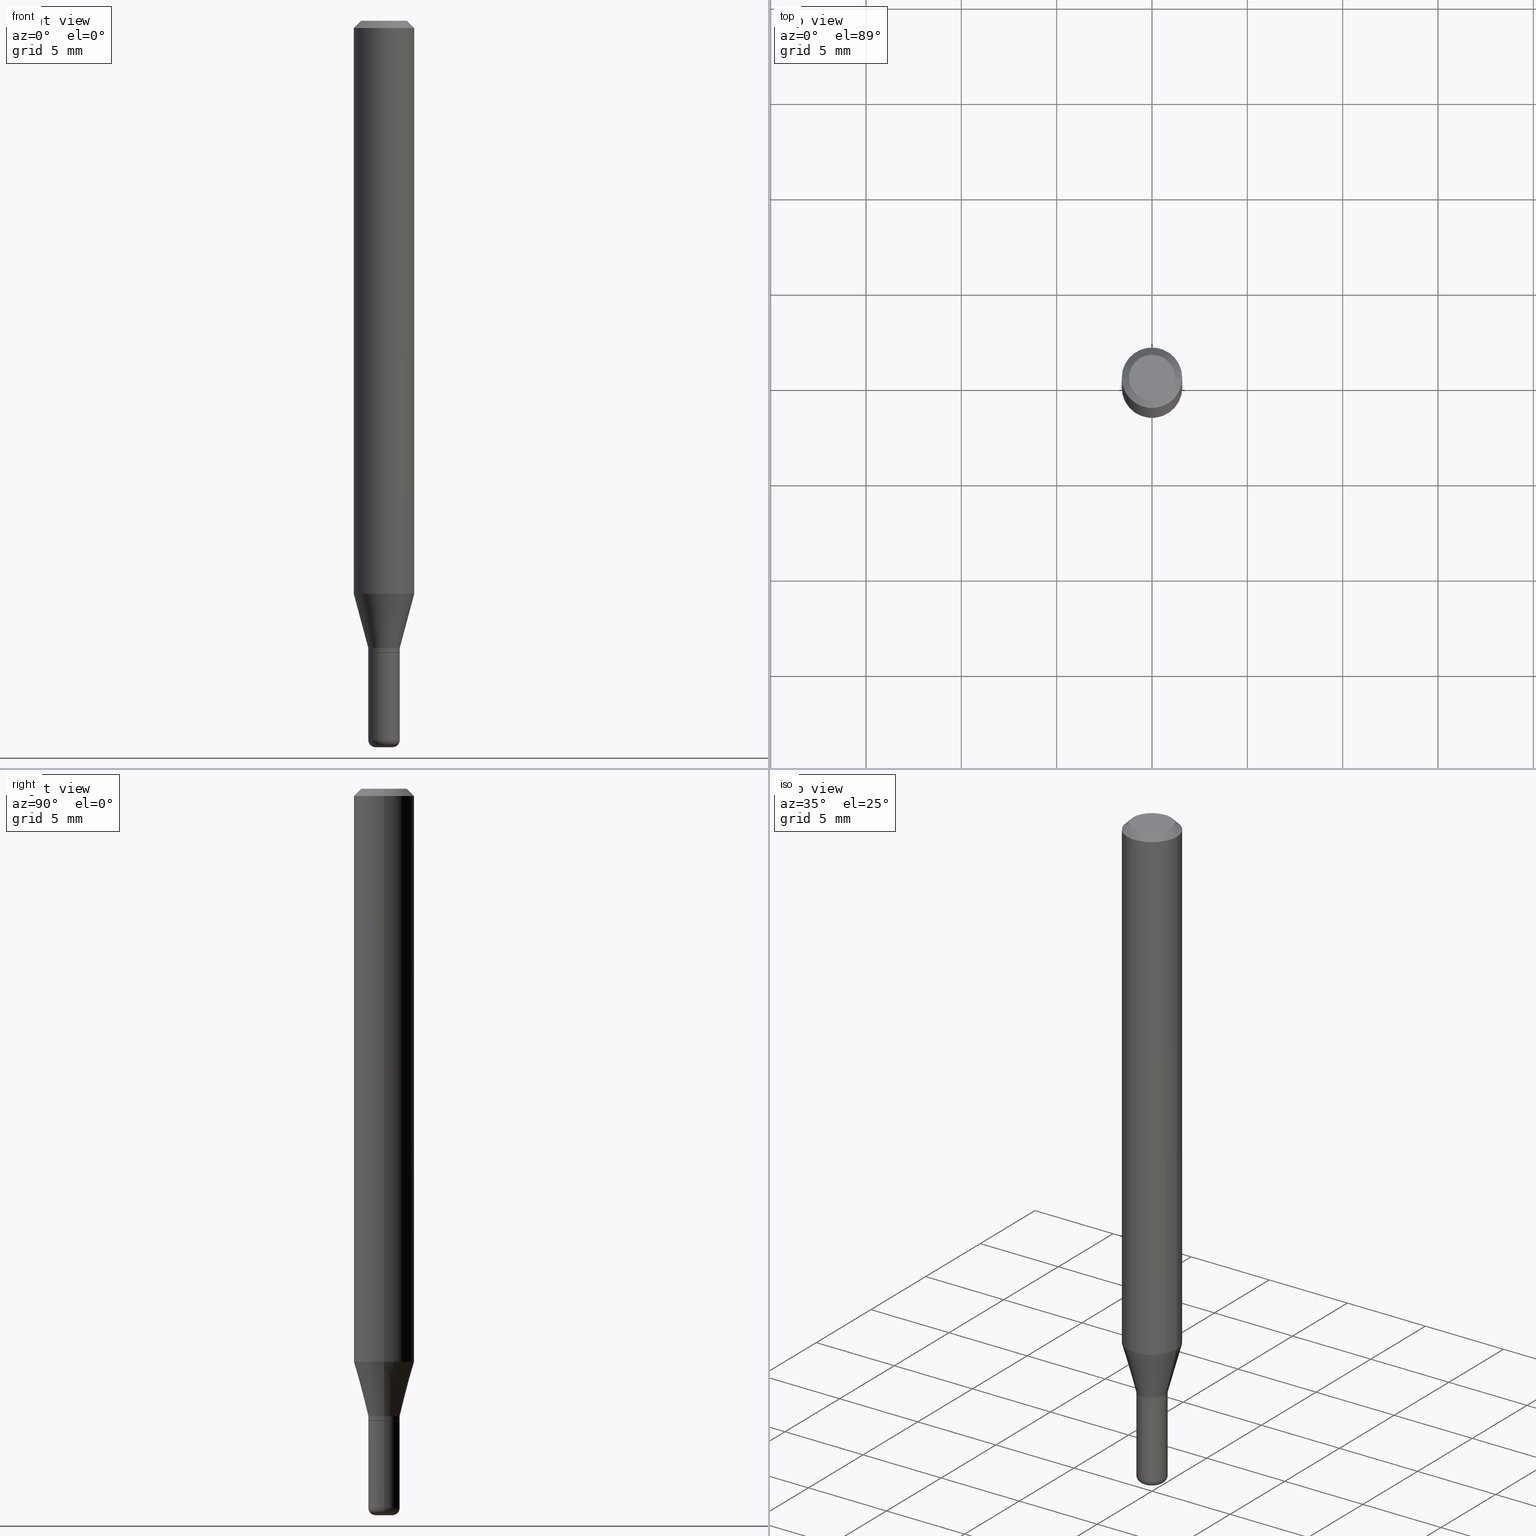
[diagram: canonical four-view strip — front | top / right | iso, engineering-drawing reading convention]
A machine part, canonical four-view strip (front | top / right | iso — engineering-drawing reading convention). The complete STEP part file that produces these views, byte-faithful:
ISO-10303-21;
HEADER;
FILE_DESCRIPTION (( 'STEP AP203' ),
    '1' );
FILE_NAME ('09029.STEP',
    '2024-02-29T21:25:33',
    ( '' ),
    ( '' ),
    'SwSTEP 2.0',
    'SolidWorks 2023',
    '' );
FILE_SCHEMA (( 'CONFIG_CONTROL_DESIGN' ));
ENDSEC;

DATA;
#1 = FACE_OUTER_BOUND ( 'NONE', #249, .T. ) ;
#2 = EDGE_LOOP ( 'NONE', ( #177, #427, #181, #397 ) ) ;
#3 = VERTEX_POINT ( 'NONE', #19 ) ;
#4 = CARTESIAN_POINT ( 'NONE',  ( 2.893083689019520084E-29, -4.130556761294637105E-15, -1.183038475772933751 ) ) ;
#5 = CIRCLE ( 'NONE', #326, 0.06250000000000000000 ) ;
#6 = VERTEX_POINT ( 'NONE', #340 ) ;
#7 = DIRECTION ( 'NONE',  ( 1.000000000000000000, -6.982962677686265922E-15, 4.876176775795935793E-29 ) ) ;
#8 = CC_DESIGN_PERSON_AND_ORGANIZATION_ASSIGNMENT ( #373, #100, ( #132 ) ) ;
#9 = DIRECTION ( 'NONE',  ( 1.000000000000000000, -6.982962677686261189E-15, 0.000000000000000000 ) ) ;
#10 = EDGE_LOOP ( 'NONE', ( #393, #253, #454, #400 ) ) ;
#11 = CONICAL_SURFACE ( 'NONE', #425, 0.03199999999999999373, 0.7853981633975507526 ) ;
#12 = VERTEX_POINT ( 'NONE', #22 ) ;
#13 = COORDINATED_UNIVERSAL_TIME_OFFSET ( 5, 0, .BEHIND. ) ;
#14 = EDGE_LOOP ( 'NONE', ( #293, #376, #483, #39 ) ) ;
#15 = DIRECTION ( 'NONE',  ( 1.000000000000000000, -6.982962677686266711E-15, 0.000000000000000000 ) ) ;
#16 = EDGE_CURVE ( 'NONE', #281, #18, #67, .T. ) ;
#17 = DIRECTION ( 'NONE',  ( -6.982962677686266711E-15, -1.000000000000000000, 3.491481338843145583E-15 ) ) ;
#18 = VERTEX_POINT ( 'NONE', #466 ) ;
#19 = CARTESIAN_POINT ( 'NONE',  ( -0.04750000000000000749, 3.578768372314221353E-16, 2.731847993664239060E-16 ) ) ;
#20 = CALENDAR_DATE ( 2024, 29, 2 ) ;
#21 = DIRECTION ( 'NONE',  ( 1.000000000000000000, -6.982962677686265922E-15, 4.876176775795935232E-29 ) ) ;
#22 = CARTESIAN_POINT ( 'NONE',  ( -0.01750000000000000167, -5.033400214283369630E-15, -1.500000000000000222 ) ) ;
#23 = AXIS2_PLACEMENT_3D ( 'NONE', #4, #503, #116 ) ;
#24 = APPROVAL_DATE_TIME ( #229, #65 ) ;
#25 = CC_DESIGN_APPROVAL ( #428, ( #285 ) ) ;
#26 = CARTESIAN_POINT ( 'NONE',  ( 3.668203209277704895E-29, -5.237222008264718177E-15, -1.500000000000000222 ) ) ;
#27 = ADVANCED_FACE ( 'NONE', ( #189 ), #254, .F. ) ;
#28 = DIRECTION ( 'NONE',  ( -2.445468806185136877E-29, 3.491481338843145188E-15, 1.000000000000000000 ) ) ;
#29 = AXIS2_PLACEMENT_3D ( 'NONE', #343, #17, #498 ) ;
#30 = DIRECTION ( 'NONE',  ( 1.000000000000000000, -6.982962677686262766E-15, 0.000000000000000000 ) ) ;
#31 = EDGE_LOOP ( 'NONE', ( #516, #242 ) ) ;
#32 = CIRCLE ( 'NONE', #311, 0.03250000000000000111 ) ;
#33 = DIRECTION ( 'NONE',  ( 1.000000000000000000, -6.982962677686267499E-15, 4.876176775795936353E-29 ) ) ;
#34 = DIRECTION ( 'NONE',  ( -2.445468806185136877E-29, 3.491481338843145188E-15, 1.000000000000000000 ) ) ;
#35 = VERTEX_POINT ( 'NONE', #461 ) ;
#36 = DIRECTION ( 'NONE',  ( 2.445468806185136597E-29, -3.491481338843145583E-15, -1.000000000000000000 ) ) ;
#37 = ADVANCED_FACE ( 'NONE', ( #347 ), #496, .T. ) ;
#38 = MECHANICAL_CONTEXT ( 'NONE', #484, 'mechanical' ) ;
#39 = ORIENTED_EDGE ( 'NONE', *, *, #367, .T. ) ;
#40 = AXIS2_PLACEMENT_3D ( 'NONE', #203, #274, #33 ) ;
#41 =( GEOMETRIC_REPRESENTATION_CONTEXT ( 3 ) GLOBAL_UNCERTAINTY_ASSIGNED_CONTEXT ( ( #146 ) ) GLOBAL_UNIT_ASSIGNED_CONTEXT ( ( #318, #408, #486 ) ) REPRESENTATION_CONTEXT ( 'NONE', 'WORKASPACE' ) );
#42 = CARTESIAN_POINT ( 'NONE',  ( 3.316907271900976589E-16, 0.04750000000000000749, -2.925296391183627249E-17 ) ) ;
#43 = DIRECTION ( 'NONE',  ( 2.445468806185136597E-29, -3.491481338843145583E-15, -1.000000000000000000 ) ) ;
#44 = EDGE_LOOP ( 'NONE', ( #448, #445, #485, #402 ) ) ;
#45 = FACE_OUTER_BOUND ( 'NONE', #14, .T. ) ;
#46 = ORIENTED_EDGE ( 'NONE', *, *, #61, .T. ) ;
#47 = COORDINATED_UNIVERSAL_TIME_OFFSET ( 5, 0, .BEHIND. ) ;
#48 = ORIENTED_EDGE ( 'NONE', *, *, #255, .T. ) ;
#49 = EDGE_CURVE ( 'NONE', #334, #12, #348, .T. ) ;
#50 = FACE_OUTER_BOUND ( 'NONE', #112, .T. ) ;
#51 = APPROVAL ( #410, 'UNSPECIFIED' ) ;
#52 = AXIS2_PLACEMENT_3D ( 'NONE', #211, #359, #286 ) ;
#53 = APPROVAL_PERSON_ORGANIZATION ( #324, #428, #444 ) ;
#54 = CARTESIAN_POINT ( 'NONE',  ( 0.06250000000000000000, -4.566991928650029563E-15, -1.183038475772933751 ) ) ;
#55 = EDGE_CURVE ( 'NONE', #82, #463, #199, .T. ) ;
#56 = FACE_OUTER_BOUND ( 'NONE', #289, .T. ) ;
#57 = CARTESIAN_POINT ( 'NONE',  ( -0.03249999999999998029, -3.988504748062208899E-15, -1.295000000000000151 ) ) ;
#58 = ORIENTED_EDGE ( 'NONE', *, *, #71, .T. ) ;
#59 = DIRECTION ( 'NONE',  ( -2.445468806185136597E-29, 3.491481338843145583E-15, 1.000000000000000000 ) ) ;
#60 = PERSON_AND_ORGANIZATION_ROLE ( 'creator' ) ;
#61 = EDGE_CURVE ( 'NONE', #213, #3, #388, .T. ) ;
#62 = DIRECTION ( 'NONE',  ( 1.000000000000000000, -6.982962677686261189E-15, 0.000000000000000000 ) ) ;
#63 = CARTESIAN_POINT ( 'NONE',  ( 2.269462870248355479E-16, 0.03249999999999544226, -1.305000000000000160 ) ) ;
#64 = APPROVAL_DATE_TIME ( #300, #51 ) ;
#65 = APPROVAL ( #423, 'UNSPECIFIED' ) ;
#66 = DIRECTION ( 'NONE',  ( -2.445468806185136597E-29, 3.491481338843145583E-15, 1.000000000000000000 ) ) ;
#67 = CIRCLE ( 'NONE', #220, 0.03199999999999999373 ) ;
#68 = TOROIDAL_SURFACE ( 'NONE', #472, 0.01749999999999999820, 0.01499999999999998557 ) ;
#69 = LINE ( 'NONE', #304, #355 ) ;
#70 = CARTESIAN_POINT ( 'NONE',  ( 3.191336792071603685E-29, -4.556383147190305752E-15, -1.305000000000000160 ) ) ;
#71 = EDGE_CURVE ( 'NONE', #394, #6, #69, .T. ) ;
#72 = FACE_OUTER_BOUND ( 'NONE', #10, .T. ) ;
#73 = AXIS2_PLACEMENT_3D ( 'NONE', #467, #162, #321 ) ;
#74 = CARTESIAN_POINT ( 'NONE',  ( 3.668203209277704895E-29, -5.237222008264718177E-15, -1.500000000000000222 ) ) ;
#75 = ORIENTED_EDGE ( 'NONE', *, *, #168, .T. ) ;
#76 = CARTESIAN_POINT ( 'NONE',  ( 0.000000000000000000, 0.000000000000000000, 0.000000000000000000 ) ) ;
#77 = PERSON_AND_ORGANIZATION_ROLE ( 'design_owner' ) ;
#78 = DIRECTION ( 'NONE',  ( -2.445468806185136597E-29, 3.491481338843145583E-15, 1.000000000000000000 ) ) ;
#79 = CLOSED_SHELL ( 'NONE', ( #105, #295, #27, #451, #391, #465 ) ) ;
#80 = CARTESIAN_POINT ( 'NONE',  ( 3.166882104009752139E-29, -4.521468333801874892E-15, -1.295000000000000151 ) ) ;
#81 = DIRECTION ( 'NONE',  ( 1.000000000000000000, -6.982962677686259611E-15, 0.000000000000000000 ) ) ;
#82 = VERTEX_POINT ( 'NONE', #197 ) ;
#83 = CARTESIAN_POINT ( 'NONE',  ( 3.668203209277632395E-31, -5.237222008264614861E-17, -0.01499999999999970281 ) ) ;
#84 = FACE_OUTER_BOUND ( 'NONE', #44, .T. ) ;
#85 = DIRECTION ( 'NONE',  ( 1.000000000000000000, 0.000000000000000000, 0.000000000000000000 ) ) ;
#86 = EDGE_CURVE ( 'NONE', #3, #35, #296, .T. ) ;
#87 = DIRECTION ( 'NONE',  ( 1.000000000000000000, -6.982962677686258033E-15, 0.000000000000000000 ) ) ;
#88 = VECTOR ( 'NONE', #114, 39.37007874015748854 ) ;
#89 = EDGE_CURVE ( 'NONE', #3, #213, #221, .T. ) ;
#90 = EDGE_CURVE ( 'NONE', #463, #443, #137, .T. ) ;
#91 = ORIENTED_EDGE ( 'NONE', *, *, #115, .F. ) ;
#92 = CALENDAR_DATE ( 2024, 29, 2 ) ;
#93 = VERTEX_POINT ( 'NONE', #457 ) ;
#94 = ORIENTED_EDGE ( 'NONE', *, *, #86, .F. ) ;
#95 = FACE_OUTER_BOUND ( 'NONE', #330, .T. ) ;
#96 = AXIS2_PLACEMENT_3D ( 'NONE', #143, #384, #344 ) ;
#97 = CIRCLE ( 'NONE', #504, 0.03249999999999999417 ) ;
#98 = ORIENTED_EDGE ( 'NONE', *, *, #367, .F. ) ;
#99 = ORIENTED_EDGE ( 'NONE', *, *, #90, .T. ) ;
#100 = PERSON_AND_ORGANIZATION_ROLE ( 'design_supplier' ) ;
#101 = DIRECTION ( 'NONE',  ( 1.000000000000000000, -6.982962677686266711E-15, 4.876176775795935793E-29 ) ) ;
#102 = ORIENTED_EDGE ( 'NONE', *, *, #125, .F. ) ;
#103 = DIRECTION ( 'NONE',  ( 1.000000000000000000, -6.982962677686266711E-15, 4.852736867747365086E-29 ) ) ;
#104 = ORIENTED_EDGE ( 'NONE', *, *, #89, .T. ) ;
#105 = ADVANCED_FACE ( 'NONE', ( #56 ), #251, .T. ) ;
#106 = CARTESIAN_POINT ( 'NONE',  ( -6.680649051745406845E-45, 9.538196290434862081E-31, 2.731847993664263218E-16 ) ) ;
#107 = CIRCLE ( 'NONE', #389, 0.01499999999999998730 ) ;
#108 = CARTESIAN_POINT ( 'NONE',  ( -0.03199999999999999373, -4.329009471747073491E-15, -1.305000000000000160 ) ) ;
#109 = DIRECTION ( 'NONE',  ( -2.445468806185136597E-29, 3.491481338843145583E-15, 1.000000000000000000 ) ) ;
#110 = CARTESIAN_POINT ( 'NONE',  ( 0.03249999999999998029, -4.748414620826678245E-15, -1.295000000000000151 ) ) ;
#111 = CARTESIAN_POINT ( 'NONE',  ( -0.03249999999999998723, 2.309263891220324697E-16, -1.598653904332843706E-30 ) ) ;
#112 = EDGE_LOOP ( 'NONE', ( #479, #128 ) ) ;
#113 = CC_DESIGN_PERSON_AND_ORGANIZATION_ASSIGNMENT ( #377, #459, ( #132 ) ) ;
#114 = DIRECTION ( 'NONE',  ( -0.2588190451025206285, 5.211531920934544731E-15, 0.9659258262890682012 ) ) ;
#115 = EDGE_CURVE ( 'NONE', #422, #455, #287, .T. ) ;
#116 = DIRECTION ( 'NONE',  ( 1.000000000000000000, -6.982962677686262766E-15, 0.000000000000000000 ) ) ;
#117 = DIRECTION ( 'NONE',  ( 1.000000000000000000, -6.982962677686267499E-15, 4.876176775795936353E-29 ) ) ;
#118 = CYLINDRICAL_SURFACE ( 'NONE', #370, 0.06250000000000000000 ) ;
#119 = AXIS2_PLACEMENT_3D ( 'NONE', #194, #59, #222 ) ;
#120 = APPROVAL_STATUS ( 'not_yet_approved' ) ;
#121 = ORIENTED_EDGE ( 'NONE', *, *, #464, .F. ) ;
#122 = VECTOR ( 'NONE', #307, 39.37007874015748143 ) ;
#123 = ORGANIZATION ( 'UNSPECIFIED', 'UNSPECIFIED', '' ) ;
#124 = DIRECTION ( 'NONE',  ( 2.438088387897960049E-29, -3.491481338843145188E-15, -1.000000000000000000 ) ) ;
#125 = EDGE_CURVE ( 'NONE', #443, #35, #450, .T. ) ;
#126 = DATE_AND_TIME ( #482, #277 ) ;
#127 = ORIENTED_EDGE ( 'NONE', *, *, #385, .F. ) ;
#128 = ORIENTED_EDGE ( 'NONE', *, *, #16, .F. ) ;
#129 = APPLICATION_PROTOCOL_DEFINITION ( 'international standard', 'config_control_design', 1994, #484 ) ;
#130 = ORIENTED_EDGE ( 'NONE', *, *, #71, .F. ) ;
#131 = AXIS2_PLACEMENT_3D ( 'NONE', #106, #299, #103 ) ;
#132 = PRODUCT_DEFINITION_FORMATION_WITH_SPECIFIED_SOURCE ( 'ANY', '', #276, .NOT_KNOWN. ) ;
#133 = SECURITY_CLASSIFICATION_LEVEL ( 'unclassified' ) ;
#134 = VERTEX_POINT ( 'NONE', #446 ) ;
#135 = EDGE_CURVE ( 'NONE', #18, #422, #233, .T. ) ;
#136 = ORIENTED_EDGE ( 'NONE', *, *, #419, .T. ) ;
#137 = LINE ( 'NONE', #499, #440 ) ;
#138 = MANIFOLD_SOLID_BREP ( 'Body-Move/Copy2[2]', #150 ) ;
#139 = PERSON_AND_ORGANIZATION ( #452, #123 ) ;
#140 = DIRECTION ( 'NONE',  ( 1.000000000000000000, -6.982962677686248567E-15, 0.000000000000000000 ) ) ;
#141 = CC_DESIGN_DATE_AND_TIME_ASSIGNMENT ( #335, #185, ( #285 ) ) ;
#142 = VECTOR ( 'NONE', #34, 39.37007874015748143 ) ;
#143 = CARTESIAN_POINT ( 'NONE',  ( 2.893083689019520084E-29, -4.130556761294637105E-15, -1.183038475772933751 ) ) ;
#144 = PERSON_AND_ORGANIZATION ( #452, #123 ) ;
#145 = DIRECTION ( 'NONE',  ( -2.445468806185136597E-29, 3.491481338843145583E-15, 1.000000000000000000 ) ) ;
#146 = UNCERTAINTY_MEASURE_WITH_UNIT (LENGTH_MEASURE( 1.000000000000000082E-05 ), #318, 'distance_accuracy_value', 'NONE');
#147 = DIRECTION ( 'NONE',  ( 1.000000000000000000, -6.982962677686273021E-15, 0.000000000000000000 ) ) ;
#148 = DIRECTION ( 'NONE',  ( -1.000000000000000000, 6.982962677686265922E-15, -4.876176775795935793E-29 ) ) ;
#149 = ADVANCED_FACE ( 'NONE', ( #45 ), #490, .T. ) ;
#150 = CLOSED_SHELL ( 'NONE', ( #317, #155, #500, #176, #508, #442, #305, #149, #187, #224, #218, #37 ) ) ;
#151 = PLANE ( 'NONE',  #73 ) ;
#152 = CIRCLE ( 'NONE', #173, 0.03249999999999998723 ) ;
#153 = SECURITY_CLASSIFICATION ( '', '', #133 ) ;
#154 = LINE ( 'NONE', #495, #122 ) ;
#155 = ADVANCED_FACE ( 'NONE', ( #1 ), #230, .T. ) ;
#156 = CARTESIAN_POINT ( 'NONE',  ( 3.166882104009752139E-29, -4.521468333801874892E-15, -1.295000000000000151 ) ) ;
#157 = ORIENTED_EDGE ( 'NONE', *, *, #313, .T. ) ;
#158 = CC_DESIGN_DATE_AND_TIME_ASSIGNMENT ( #306, #219, ( #153 ) ) ;
#159 = CIRCLE ( 'NONE', #513, 0.03249999999999998029 ) ;
#160 = DIRECTION ( 'NONE',  ( 1.000000000000000000, -6.982962677686266711E-15, 0.000000000000000000 ) ) ;
#161 = CC_DESIGN_APPROVAL ( #51, ( #132 ) ) ;
#162 = DIRECTION ( 'NONE',  ( -2.438088387897960049E-29, 3.491481338843145188E-15, 1.000000000000000000 ) ) ;
#163 = CARTESIAN_POINT ( 'NONE',  ( 3.191336792071603685E-29, -4.556383147190305752E-15, -1.305000000000000160 ) ) ;
#164 = CARTESIAN_POINT ( 'NONE',  ( -0.03199999999999999373, -4.326360244572962290E-15, -1.305000000000000160 ) ) ;
#165 = DIRECTION ( 'NONE',  ( -2.445468806185136877E-29, 3.491481338843145188E-15, 1.000000000000000000 ) ) ;
#166 = ORIENTED_EDGE ( 'NONE', *, *, #363, .F. ) ;
#167 = DIRECTION ( 'NONE',  ( -2.445468806185136597E-29, 3.491481338843145583E-15, 1.000000000000000000 ) ) ;
#168 = EDGE_CURVE ( 'NONE', #93, #134, #401, .T. ) ;
#169 = ORIENTED_EDGE ( 'NONE', *, *, #464, .T. ) ;
#170 = AXIS2_PLACEMENT_3D ( 'NONE', #411, #184, #337 ) ;
#171 = DIRECTION ( 'NONE',  ( 0.000000000000000000, 0.000000000000000000, 1.000000000000000000 ) ) ;
#172 = ORIENTED_EDGE ( 'NONE', *, *, #255, .F. ) ;
#173 = AXIS2_PLACEMENT_3D ( 'NONE', #460, #470, #62 ) ;
#174 = CC_DESIGN_SECURITY_CLASSIFICATION ( #153, ( #132 ) ) ;
#175 = DIRECTION ( 'NONE',  ( 0.7071067811866199593, -2.468850131083015945E-15, 0.7071067811864750752 ) ) ;
#176 = ADVANCED_FACE ( 'NONE', ( #269 ), #118, .T. ) ;
#177 = ORIENTED_EDGE ( 'NONE', *, *, #385, .T. ) ;
#178 = DIRECTION ( 'NONE',  ( -2.445468806185136597E-29, 3.491481338843145583E-15, 1.000000000000000000 ) ) ;
#179 = CIRCLE ( 'NONE', #192, 0.03250000000000000111 ) ;
#180 = AXIS2_PLACEMENT_3D ( 'NONE', #83, #43, #438 ) ;
#181 = ORIENTED_EDGE ( 'NONE', *, *, #245, .F. ) ;
#182 = EDGE_CURVE ( 'NONE', #18, #281, #206, .T. ) ;
#183 = ORIENTED_EDGE ( 'NONE', *, *, #245, .T. ) ;
#184 = DIRECTION ( 'NONE',  ( -2.445468806185136597E-29, 3.491481338843145583E-15, 1.000000000000000000 ) ) ;
#185 = DATE_TIME_ROLE ( 'creation_date' ) ;
#186 = CARTESIAN_POINT ( 'NONE',  ( 0.000000000000000000, 0.000000000000000000, 0.000000000000000000 ) ) ;
#187 = ADVANCED_FACE ( 'NONE', ( #480 ), #358, .F. ) ;
#188 = ORIENTED_EDGE ( 'NONE', *, *, #61, .F. ) ;
#189 = FACE_OUTER_BOUND ( 'NONE', #31, .T. ) ;
#190 = CALENDAR_DATE ( 2024, 29, 2 ) ;
#191 = DIRECTION ( 'NONE',  ( -2.445468806185136597E-29, 3.491481338843145583E-15, 1.000000000000000000 ) ) ;
#192 = AXIS2_PLACEMENT_3D ( 'NONE', #323, #78, #476 ) ;
#193 = ORIENTED_EDGE ( 'NONE', *, *, #329, .T. ) ;
#194 = CARTESIAN_POINT ( 'NONE',  ( 0.000000000000000000, 0.000000000000000000, 0.000000000000000000 ) ) ;
#195 = SHAPE_DEFINITION_REPRESENTATION ( #271, #493 ) ;
#196 = DIRECTION ( 'NONE',  ( -2.445468806185136597E-29, 3.491481338843145583E-15, 1.000000000000000000 ) ) ;
#197 = CARTESIAN_POINT ( 'NONE',  ( -0.06250000000000000000, -3.686467551444575277E-15, -1.183038475772933751 ) ) ;
#198 = ORIENTED_EDGE ( 'NONE', *, *, #449, .F. ) ;
#199 = CIRCLE ( 'NONE', #96, 0.06250000000000000000 ) ;
#200 = AXIS2_PLACEMENT_3D ( 'NONE', #42, #124, #248 ) ;
#201 = CARTESIAN_POINT ( 'NONE',  ( 0.03249999999999998723, -5.411796075206874844E-15, -1.485000000000000098 ) ) ;
#202 = LINE ( 'NONE', #509, #142 ) ;
#203 = CARTESIAN_POINT ( 'NONE',  ( 0.000000000000000000, 0.000000000000000000, 0.000000000000000000 ) ) ;
#204 = DIRECTION ( 'NONE',  ( 1.000000000000000000, -6.982962677686273021E-15, 0.000000000000000000 ) ) ;
#205 = VECTOR ( 'NONE', #354, 39.37007874015748143 ) ;
#206 = CIRCLE ( 'NONE', #52, 0.03199999999999999373 ) ;
#207 = LINE ( 'NONE', #250, #88 ) ;
#208 = ORIENTED_EDGE ( 'NONE', *, *, #135, .F. ) ;
#209 = CARTESIAN_POINT ( 'NONE',  ( 0.03199999999999999373, -4.779837952876266098E-15, -1.305000000000000160 ) ) ;
#210 = ORIENTED_EDGE ( 'NONE', *, *, #329, .F. ) ;
#211 = CARTESIAN_POINT ( 'NONE',  ( 3.191336792071603685E-29, -4.556383147190305752E-15, -1.305000000000000160 ) ) ;
#212 = ORIENTED_EDGE ( 'NONE', *, *, #419, .F. ) ;
#213 = VERTEX_POINT ( 'NONE', #362 ) ;
#214 = LINE ( 'NONE', #108, #341 ) ;
#215 = AXIS2_PLACEMENT_3D ( 'NONE', #235, #386, #392 ) ;
#216 = VECTOR ( 'NONE', #165, 39.37007874015748143 ) ;
#217 = PERSON_AND_ORGANIZATION ( #452, #123 ) ;
#218 = ADVANCED_FACE ( 'NONE', ( #84 ), #11, .T. ) ;
#219 = DATE_TIME_ROLE ( 'classification_date' ) ;
#220 = AXIS2_PLACEMENT_3D ( 'NONE', #228, #417, #147 ) ;
#221 = CIRCLE ( 'NONE', #131, 0.04750000000000000749 ) ;
#222 = DIRECTION ( 'NONE',  ( 1.000000000000000000, -6.982962677686265922E-15, 4.876176775795935232E-29 ) ) ;
#223 = COORDINATED_UNIVERSAL_TIME_OFFSET ( 5, 0, .BEHIND. ) ;
#224 = ADVANCED_FACE ( 'NONE', ( #50 ), #151, .F. ) ;
#225 = FACE_OUTER_BOUND ( 'NONE', #298, .T. ) ;
#226 = ORIENTED_EDGE ( 'NONE', *, *, #477, .F. ) ;
#227 = FACE_OUTER_BOUND ( 'NONE', #361, .T. ) ;
#228 = CARTESIAN_POINT ( 'NONE',  ( 3.191336792071603685E-29, -4.556383147190305752E-15, -1.305000000000000160 ) ) ;
#229 = DATE_AND_TIME ( #92, #237 ) ;
#230 = CONICAL_SURFACE ( 'NONE', #266, 0.03199999999999999373, 0.7853981633975507526 ) ;
#231 = LOCAL_TIME ( 16, 25, 33.00000000000000000, #223 ) ;
#232 = DIRECTION ( 'NONE',  ( -2.445468806185136597E-29, 3.491481338843145583E-15, 1.000000000000000000 ) ) ;
#233 = LINE ( 'NONE', #209, #244 ) ;
#234 = EDGE_CURVE ( 'NONE', #281, #455, #214, .T. ) ;
#235 = CARTESIAN_POINT ( 'NONE',  ( 3.166882104009752139E-29, -4.521468333801874892E-15, -1.295000000000000151 ) ) ;
#236 = CIRCLE ( 'NONE', #301, 0.03249999999999998029 ) ;
#237 = LOCAL_TIME ( 16, 25, 33.00000000000000000, #453 ) ;
#238 = CARTESIAN_POINT ( 'NONE',  ( 3.166882104009752139E-29, -4.521468333801874892E-15, -1.295000000000000151 ) ) ;
#239 = EDGE_LOOP ( 'NONE', ( #212, #260, #375, #166 ) ) ;
#240 = DIRECTION ( 'NONE',  ( -2.445468806185136877E-29, 3.491481338843145188E-15, 1.000000000000000000 ) ) ;
#241 = APPLICATION_PROTOCOL_DEFINITION ( 'international standard', 'config_control_design', 1994, #507 ) ;
#242 = ORIENTED_EDGE ( 'NONE', *, *, #264, .T. ) ;
#243 = CARTESIAN_POINT ( 'NONE',  ( 3.190114057668511444E-29, -4.554637406520884249E-15, -1.304500000000000215 ) ) ;
#244 = VECTOR ( 'NONE', #175, 39.37007874015748143 ) ;
#245 = EDGE_CURVE ( 'NONE', #463, #82, #331, .T. ) ;
#246 = DIRECTION ( 'NONE',  ( -1.000000000000000000, 6.982962677686266711E-15, 0.000000000000000000 ) ) ;
#247 = ORIENTED_EDGE ( 'NONE', *, *, #115, .T. ) ;
#248 = DIRECTION ( 'NONE',  ( -1.000000000000000000, 6.982962677686265922E-15, -4.876176775795935793E-29 ) ) ;
#249 = EDGE_LOOP ( 'NONE', ( #405, #510, #91, #208 ) ) ;
#250 = CARTESIAN_POINT ( 'NONE',  ( -0.03249999999999998029, -4.290541944679842521E-15, -1.295000000000000151 ) ) ;
#251 = TOROIDAL_SURFACE ( 'NONE', #310, 0.01749999999999999820, 0.01499999999999998557 ) ;
#252 = ORIENTED_EDGE ( 'NONE', *, *, #49, .T. ) ;
#253 = ORIENTED_EDGE ( 'NONE', *, *, #363, .T. ) ;
#254 = PLANE ( 'NONE',  #489 ) ;
#255 = EDGE_CURVE ( 'NONE', #12, #93, #107, .T. ) ;
#256 = CIRCLE ( 'NONE', #29, 0.01499999999999998730 ) ;
#257 = APPROVAL_PERSON_ORGANIZATION ( #139, #51, #414 ) ;
#258 = CARTESIAN_POINT ( 'NONE',  ( 0.01750000000000000167, -5.359423855124228160E-15, -1.500000000000000222 ) ) ;
#259 = EDGE_LOOP ( 'NONE', ( #188, #157, #473, #94 ) ) ;
#260 = ORIENTED_EDGE ( 'NONE', *, *, #273, .T. ) ;
#261 = DIRECTION ( 'NONE',  ( 1.000000000000000000, -6.982962677686262766E-15, 0.000000000000000000 ) ) ;
#262 = CARTESIAN_POINT ( 'NONE',  ( 3.668203209277632395E-31, -5.237222008264614861E-17, -0.01499999999999970281 ) ) ;
#263 = PERSON_AND_ORGANIZATION ( #452, #123 ) ;
#264 = EDGE_CURVE ( 'NONE', #134, #6, #179, .T. ) ;
#265 = DIRECTION ( 'NONE',  ( -2.445468806185136877E-29, 3.491481338843145188E-15, 1.000000000000000000 ) ) ;
#266 = AXIS2_PLACEMENT_3D ( 'NONE', #70, #167, #204 ) ;
#267 = AXIS2_PLACEMENT_3D ( 'NONE', #280, #515, #7 ) ;
#268 = CARTESIAN_POINT ( 'NONE',  ( -0.06250000000000000000, 3.840629472727455270E-16, -0.01499999999999970281 ) ) ;
#269 = FACE_OUTER_BOUND ( 'NONE', #409, .T. ) ;
#270 = CARTESIAN_POINT ( 'NONE',  ( 3.668203209277632395E-31, -5.237222008264614861E-17, -0.01499999999999970281 ) ) ;
#271 = PRODUCT_DEFINITION_SHAPE ( 'NONE', 'NONE',  #285 ) ;
#272 = CC_DESIGN_PERSON_AND_ORGANIZATION_ASSIGNMENT ( #217, #77, ( #276 ) ) ;
#273 = EDGE_CURVE ( 'NONE', #455, #422, #97, .T. ) ;
#274 = DIRECTION ( 'NONE',  ( -2.445468806185136597E-29, 3.491481338843145583E-15, 1.000000000000000000 ) ) ;
#275 = VECTOR ( 'NONE', #424, 39.37007874015748143 ) ;
#276 = PRODUCT ( '09029', '09029', '', ( #38 ) ) ;
#277 = LOCAL_TIME ( 16, 25, 33.00000000000000000, #47 ) ;
#278 = DIRECTION ( 'NONE',  ( 0.2588190451025206285, 1.565188264969627095E-15, 0.9659258262890682012 ) ) ;
#279 = ORIENTED_EDGE ( 'NONE', *, *, #356, .T. ) ;
#280 = CARTESIAN_POINT ( 'NONE',  ( 3.582686580359766038E-29, -5.359686688179453325E-15, -1.500000000000000222 ) ) ;
#281 = VERTEX_POINT ( 'NONE', #164 ) ;
#282 = EDGE_CURVE ( 'NONE', #93, #394, #152, .T. ) ;
#283 = DIRECTION ( 'NONE',  ( 7.105427357601001859E-15, 1.000000000000000000, -3.491481338843145583E-15 ) ) ;
#284 = CARTESIAN_POINT ( 'NONE',  ( -0.03249999999999999417, -4.323711017398851878E-15, -1.304500000000000215 ) ) ;
#285 = PRODUCT_DEFINITION ( 'UNKNOWN', '', #132, #462 ) ;
#286 = DIRECTION ( 'NONE',  ( 1.000000000000000000, -6.982962677686273021E-15, 0.000000000000000000 ) ) ;
#287 = CIRCLE ( 'NONE', #407, 0.03249999999999999417 ) ;
#288 = ORIENTED_EDGE ( 'NONE', *, *, #282, .F. ) ;
#289 = EDGE_LOOP ( 'NONE', ( #252, #48, #121, #292 ) ) ;
#290 = DIRECTION ( 'NONE',  ( 1.000000000000000000, -6.982962677686266711E-15, 4.876176775795935793E-29 ) ) ;
#291 = LENGTH_MEASURE_WITH_UNIT ( LENGTH_MEASURE( 0.02539999999999999897 ), #406 );
#292 = ORIENTED_EDGE ( 'NONE', *, *, #356, .F. ) ;
#293 = ORIENTED_EDGE ( 'NONE', *, *, #313, .F. ) ;
#294 = VECTOR ( 'NONE', #278, 39.37007874015748854 ) ;
#295 = ADVANCED_FACE ( 'NONE', ( #95 ), #468, .T. ) ;
#296 = LINE ( 'NONE', #268, #275 ) ;
#297 = APPROVAL_DATE_TIME ( #126, #428 ) ;
#298 = EDGE_LOOP ( 'NONE', ( #351, #494, #58, #382 ) ) ;
#299 = DIRECTION ( 'NONE',  ( -2.445468806185136597E-29, 3.491481338843145583E-15, 1.000000000000000000 ) ) ;
#300 = DATE_AND_TIME ( #20, #231 ) ;
#301 = AXIS2_PLACEMENT_3D ( 'NONE', #238, #416, #261 ) ;
#302 = AXIS2_PLACEMENT_3D ( 'NONE', #478, #171, #85 ) ;
#303 = CYLINDRICAL_SURFACE ( 'NONE', #458, 0.03249999999999998723 ) ;
#304 = CARTESIAN_POINT ( 'NONE',  ( 0.03249999999999999417, -2.269462870248036484E-16, 1.584757452133678993E-30 ) ) ;
#305 = ADVANCED_FACE ( 'NONE', ( #353 ), #352, .T. ) ;
#306 = DATE_AND_TIME ( #190, #441 ) ;
#307 = DIRECTION ( 'NONE',  ( 0.7071067811865479058, -7.319954787623257623E-15, -0.7071067811865471286 ) ) ;
#308 = CARTESIAN_POINT ( 'NONE',  ( 3.631521177184928138E-29, -5.184849788182071492E-15, -1.485000000000000098 ) ) ;
#309 = CARTESIAN_POINT ( 'NONE',  ( 3.190114057668511444E-29, -4.554637406520884249E-15, -1.304500000000000215 ) ) ;
#310 = AXIS2_PLACEMENT_3D ( 'NONE', #308, #66, #346 ) ;
#311 = AXIS2_PLACEMENT_3D ( 'NONE', #163, #396, #87 ) ;
#312 = CARTESIAN_POINT ( 'NONE',  ( 3.191336792071603685E-29, -4.556383147190305752E-15, -1.305000000000000160 ) ) ;
#313 = EDGE_CURVE ( 'NONE', #213, #443, #154, .T. ) ;
#314 = CARTESIAN_POINT ( 'NONE',  ( 3.631521177184928138E-29, -5.184849788182071492E-15, -1.485000000000000098 ) ) ;
#315 = FACE_OUTER_BOUND ( 'NONE', #319, .T. ) ;
#316 = CONICAL_SURFACE ( 'NONE', #180, 0.06250000000000000000, 0.7853981633974488341 ) ;
#317 = ADVANCED_FACE ( 'NONE', ( #227 ), #303, .T. ) ;
#318 =( CONVERSION_BASED_UNIT ( 'INCH', #291 ) LENGTH_UNIT ( ) NAMED_UNIT ( #339 ) );
#319 = EDGE_LOOP ( 'NONE', ( #172, #193, #279, #288 ) ) ;
#320 = MANIFOLD_SOLID_BREP ( 'Body-Move/Copy2[1]', #79 ) ;
#321 = DIRECTION ( 'NONE',  ( 1.000000000000000000, -6.982962677686265922E-15, 4.876176775795935793E-29 ) ) ;
#322 = FACE_OUTER_BOUND ( 'NONE', #336, .T. ) ;
#323 = CARTESIAN_POINT ( 'NONE',  ( 3.191336792071603685E-29, -4.556383147190305752E-15, -1.305000000000000160 ) ) ;
#324 = PERSON_AND_ORGANIZATION ( #452, #123 ) ;
#325 = CARTESIAN_POINT ( 'NONE',  ( -0.03249999999999999417, 2.309263891220325190E-16, -1.598653904332844057E-30 ) ) ;
#326 = AXIS2_PLACEMENT_3D ( 'NONE', #270, #145, #160 ) ;
#327 = AXIS2_PLACEMENT_3D ( 'NONE', #80, #178, #365 ) ;
#328 = ORIENTED_EDGE ( 'NONE', *, *, #449, .T. ) ;
#329 = EDGE_CURVE ( 'NONE', #12, #334, #413, .T. ) ;
#330 = EDGE_LOOP ( 'NONE', ( #169, #75, #226, #130 ) ) ;
#331 = CIRCLE ( 'NONE', #23, 0.06250000000000000000 ) ;
#332 = PERSON_AND_ORGANIZATION_ROLE ( 'classification_officer' ) ;
#333 = CONICAL_SURFACE ( 'NONE', #327, 0.03249999999999998029, 0.2617993877991493523 ) ;
#334 = VERTEX_POINT ( 'NONE', #258 ) ;
#335 = DATE_AND_TIME ( #491, #497 ) ;
#336 = EDGE_LOOP ( 'NONE', ( #369, #210 ) ) ;
#337 = DIRECTION ( 'NONE',  ( 1.000000000000000000, -6.982962677686266711E-15, 4.852736867747365086E-29 ) ) ;
#338 = DIRECTION ( 'NONE',  ( -2.445468806185136597E-29, 3.491481338843145583E-15, 1.000000000000000000 ) ) ;
#339 = DIMENSIONAL_EXPONENTS ( 1.000000000000000000, 0.000000000000000000, 0.000000000000000000, 0.000000000000000000, 0.000000000000000000, 0.000000000000000000, 0.000000000000000000 ) ;
#340 = CARTESIAN_POINT ( 'NONE',  ( 0.03250000000000000111, -4.783329434215109105E-15, -1.305000000000000160 ) ) ;
#341 = VECTOR ( 'NONE', #429, 39.37007874015748143 ) ;
#342 = CC_DESIGN_APPROVAL ( #65, ( #153 ) ) ;
#343 = CARTESIAN_POINT ( 'NONE',  ( 0.01749999999999999820, -5.307051635041580686E-15, -1.485000000000000098 ) ) ;
#344 = DIRECTION ( 'NONE',  ( 1.000000000000000000, -6.982962677686262766E-15, 0.000000000000000000 ) ) ;
#345 = COORDINATED_UNIVERSAL_TIME_OFFSET ( 5, 0, .BEHIND. ) ;
#346 = DIRECTION ( 'NONE',  ( 1.000000000000000000, -6.982962677686261189E-15, 4.883557194083111219E-29 ) ) ;
#347 = FACE_OUTER_BOUND ( 'NONE', #239, .T. ) ;
#348 = CIRCLE ( 'NONE', #412, 0.01750000000000000167 ) ;
#349 = AXIS2_PLACEMENT_3D ( 'NONE', #76, #430, #101 ) ;
#350 = CARTESIAN_POINT ( 'NONE',  ( 0.03249999999999999417, -4.781583693545688390E-15, -1.304500000000000215 ) ) ;
#351 = ORIENTED_EDGE ( 'NONE', *, *, #168, .F. ) ;
#352 = CYLINDRICAL_SURFACE ( 'NONE', #349, 0.06250000000000000000 ) ;
#353 = FACE_OUTER_BOUND ( 'NONE', #436, .T. ) ;
#354 = DIRECTION ( 'NONE',  ( -2.445468806185136877E-29, 3.491481338843145188E-15, 1.000000000000000000 ) ) ;
#355 = VECTOR ( 'NONE', #265, 39.37007874015748143 ) ;
#356 = EDGE_CURVE ( 'NONE', #334, #394, #256, .T. ) ;
#357 = PLANE ( 'NONE',  #267 ) ;
#358 = PLANE ( 'NONE',  #200 ) ;
#359 = DIRECTION ( 'NONE',  ( -2.445468806185136597E-29, 3.491481338843145583E-15, 1.000000000000000000 ) ) ;
#360 = FACE_OUTER_BOUND ( 'NONE', #259, .T. ) ;
#361 = EDGE_LOOP ( 'NONE', ( #247, #136, #127, #488 ) ) ;
#362 = CARTESIAN_POINT ( 'NONE',  ( 0.04750000000000000749, -4.035134999187568762E-16, 2.731847993664288856E-16 ) ) ;
#363 = EDGE_CURVE ( 'NONE', #387, #364, #159, .T. ) ;
#364 = VERTEX_POINT ( 'NONE', #435 ) ;
#365 = DIRECTION ( 'NONE',  ( 1.000000000000000000, -6.982962677686262766E-15, 0.000000000000000000 ) ) ;
#366 = CARTESIAN_POINT ( 'NONE',  ( 0.03249999999999998723, -2.269462870248035498E-16, 1.584757452133678292E-30 ) ) ;
#367 = EDGE_CURVE ( 'NONE', #35, #443, #5, .T. ) ;
#368 = EDGE_CURVE ( 'NONE', #364, #463, #456, .T. ) ;
#369 = ORIENTED_EDGE ( 'NONE', *, *, #49, .F. ) ;
#370 = AXIS2_PLACEMENT_3D ( 'NONE', #517, #474, #290 ) ;
#371 = AXIS2_PLACEMENT_3D ( 'NONE', #186, #338, #117 ) ;
#372 = DIRECTION ( 'NONE',  ( -2.445468806185136597E-29, 3.491481338843145583E-15, 1.000000000000000000 ) ) ;
#373 = PERSON_AND_ORGANIZATION ( #452, #123 ) ;
#374 = CYLINDRICAL_SURFACE ( 'NONE', #371, 0.03249999999999999417 ) ;
#375 = ORIENTED_EDGE ( 'NONE', *, *, #502, .T. ) ;
#376 = ORIENTED_EDGE ( 'NONE', *, *, #89, .F. ) ;
#377 = PERSON_AND_ORGANIZATION ( #452, #123 ) ;
#378 = DIRECTION ( 'NONE',  ( -2.445468806185136597E-29, 3.491481338843145583E-15, 1.000000000000000000 ) ) ;
#379 = DIRECTION ( 'NONE',  ( 1.000000000000000000, -6.982962677686248567E-15, 0.000000000000000000 ) ) ;
#380 = VECTOR ( 'NONE', #240, 39.37007874015748143 ) ;
#381 = APPROVAL_PERSON_ORGANIZATION ( #263, #65, #492 ) ;
#382 = ORIENTED_EDGE ( 'NONE', *, *, #264, .F. ) ;
#383 = DIRECTION ( 'NONE',  ( 2.438088387897960049E-29, -3.491481338843145188E-15, -1.000000000000000000 ) ) ;
#384 = DIRECTION ( 'NONE',  ( -2.445468806185136597E-29, 3.491481338843145583E-15, 1.000000000000000000 ) ) ;
#385 = EDGE_CURVE ( 'NONE', #364, #387, #236, .T. ) ;
#386 = DIRECTION ( 'NONE',  ( -2.445468806185136597E-29, 3.491481338843145583E-15, 1.000000000000000000 ) ) ;
#387 = VERTEX_POINT ( 'NONE', #57 ) ;
#388 = CIRCLE ( 'NONE', #170, 0.04750000000000000749 ) ;
#389 = AXIS2_PLACEMENT_3D ( 'NONE', #439, #283, #437 ) ;
#390 = CARTESIAN_POINT ( 'NONE',  ( 0.06250000000000000000, -4.888073874380378612E-16, -0.01499999999999970281 ) ) ;
#391 = ADVANCED_FACE ( 'NONE', ( #315 ), #68, .T. ) ;
#392 = DIRECTION ( 'NONE',  ( 1.000000000000000000, -6.982962677686262766E-15, 0.000000000000000000 ) ) ;
#393 = ORIENTED_EDGE ( 'NONE', *, *, #469, .F. ) ;
#394 = VERTEX_POINT ( 'NONE', #201 ) ;
#395 = CARTESIAN_POINT ( 'NONE',  ( 3.668203209277632395E-31, -5.237222008264614861E-17, -0.01499999999999970281 ) ) ;
#396 = DIRECTION ( 'NONE',  ( -2.445468806185136597E-29, 3.491481338843145583E-15, 1.000000000000000000 ) ) ;
#397 = ORIENTED_EDGE ( 'NONE', *, *, #368, .F. ) ;
#398 = DIRECTION ( 'NONE',  ( -2.445468806185136597E-29, 3.491481338843145583E-15, 1.000000000000000000 ) ) ;
#399 = AXIS2_PLACEMENT_3D ( 'NONE', #262, #232, #15 ) ;
#400 = ORIENTED_EDGE ( 'NONE', *, *, #55, .F. ) ;
#401 = LINE ( 'NONE', #325, #205 ) ;
#402 = ORIENTED_EDGE ( 'NONE', *, *, #273, .F. ) ;
#403 = DIRECTION ( 'NONE',  ( -2.445468806185136597E-29, 3.491481338843145583E-15, 1.000000000000000000 ) ) ;
#404 = DIRECTION ( 'NONE',  ( 1.000000000000000000, -6.982962677686273021E-15, 0.000000000000000000 ) ) ;
#405 = ORIENTED_EDGE ( 'NONE', *, *, #182, .T. ) ;
#406 =( LENGTH_UNIT ( ) NAMED_UNIT ( * ) SI_UNIT ( $, .METRE. ) );
#407 = AXIS2_PLACEMENT_3D ( 'NONE', #309, #372, #501 ) ;
#408 =( NAMED_UNIT ( * ) PLANE_ANGLE_UNIT ( ) SI_UNIT ( $, .RADIAN. ) );
#409 = EDGE_LOOP ( 'NONE', ( #183, #328, #102, #512 ) ) ;
#410 = APPROVAL_STATUS ( 'not_yet_approved' ) ;
#411 = CARTESIAN_POINT ( 'NONE',  ( -6.680649051745406845E-45, 9.538196290434862081E-31, 2.731847993664263218E-16 ) ) ;
#412 = AXIS2_PLACEMENT_3D ( 'NONE', #26, #196, #379 ) ;
#413 = CIRCLE ( 'NONE', #481, 0.01750000000000000167 ) ;
#414 = APPROVAL_ROLE ( '' ) ;
#415 = CIRCLE ( 'NONE', #433, 0.03249999999999998723 ) ;
#416 = DIRECTION ( 'NONE',  ( -2.445468806185136597E-29, 3.491481338843145583E-15, 1.000000000000000000 ) ) ;
#417 = DIRECTION ( 'NONE',  ( -2.445468806185136597E-29, 3.491481338843145583E-15, 1.000000000000000000 ) ) ;
#418 = PERSON_AND_ORGANIZATION ( #452, #123 ) ;
#419 = EDGE_CURVE ( 'NONE', #455, #387, #420, .T. ) ;
#420 = LINE ( 'NONE', #111, #380 ) ;
#421 = ORIENTED_EDGE ( 'NONE', *, *, #55, .T. ) ;
#422 = VERTEX_POINT ( 'NONE', #350 ) ;
#423 = APPROVAL_STATUS ( 'not_yet_approved' ) ;
#424 = DIRECTION ( 'NONE',  ( -0.7071067811865479058, 2.468850131082261005E-15, -0.7071067811865471286 ) ) ;
#425 = AXIS2_PLACEMENT_3D ( 'NONE', #312, #514, #404 ) ;
#426 = AXIS2_PLACEMENT_3D ( 'NONE', #395, #36, #246 ) ;
#427 = ORIENTED_EDGE ( 'NONE', *, *, #469, .T. ) ;
#428 = APPROVAL ( #120, 'UNSPECIFIED' ) ;
#429 = DIRECTION ( 'NONE',  ( -0.7071067811866199593, 7.493145998870616062E-15, 0.7071067811864750752 ) ) ;
#430 = DIRECTION ( 'NONE',  ( -2.445468806185136597E-29, 3.491481338843145583E-15, 1.000000000000000000 ) ) ;
#431 = EDGE_LOOP ( 'NONE', ( #104, #46 ) ) ;
#432 = CONICAL_SURFACE ( 'NONE', #215, 0.03249999999999998029, 0.2617993877991493523 ) ;
#433 = AXIS2_PLACEMENT_3D ( 'NONE', #518, #403, #9 ) ;
#434 = CC_DESIGN_PERSON_AND_ORGANIZATION_ASSIGNMENT ( #144, #332, ( #153 ) ) ;
#435 = CARTESIAN_POINT ( 'NONE',  ( 0.03249999999999998029, -4.748414620826678245E-15, -1.295000000000000151 ) ) ;
#436 = EDGE_LOOP ( 'NONE', ( #198, #421, #99, #98 ) ) ;
#437 = DIRECTION ( 'NONE',  ( -1.000000000000000000, 7.105427357600997126E-15, 0.000000000000000000 ) ) ;
#438 = DIRECTION ( 'NONE',  ( -1.000000000000000000, 6.982962677686266711E-15, 0.000000000000000000 ) ) ;
#439 = CARTESIAN_POINT ( 'NONE',  ( -0.01749999999999999820, -5.060504809424054243E-15, -1.485000000000000098 ) ) ;
#440 = VECTOR ( 'NONE', #28, 39.37007874015748143 ) ;
#441 = LOCAL_TIME ( 16, 25, 33.00000000000000000, #13 ) ;
#442 = ADVANCED_FACE ( 'NONE', ( #72 ), #432, .T. ) ;
#443 = VERTEX_POINT ( 'NONE', #390 ) ;
#444 = APPROVAL_ROLE ( '' ) ;
#445 = ORIENTED_EDGE ( 'NONE', *, *, #16, .T. ) ;
#446 = CARTESIAN_POINT ( 'NONE',  ( -0.03250000000000000111, -4.639690078564155857E-15, -1.305000000000000160 ) ) ;
#447 = LINE ( 'NONE', #366, #216 ) ;
#448 = ORIENTED_EDGE ( 'NONE', *, *, #234, .F. ) ;
#449 = EDGE_CURVE ( 'NONE', #82, #35, #202, .T. ) ;
#450 = CIRCLE ( 'NONE', #399, 0.06250000000000000000 ) ;
#451 = ADVANCED_FACE ( 'NONE', ( #225 ), #374, .T. ) ;
#452 = PERSON ( 'UNSPECIFIED', 'UNSPECIFIED', 'UNSPECIFIED', ('UNSPECIFIED'), ('UNSPECIFIED'), ('UNSPECIFIED') ) ;
#453 = COORDINATED_UNIVERSAL_TIME_OFFSET ( 5, 0, .BEHIND. ) ;
#454 = ORIENTED_EDGE ( 'NONE', *, *, #368, .T. ) ;
#455 = VERTEX_POINT ( 'NONE', #284 ) ;
#456 = LINE ( 'NONE', #110, #294 ) ;
#457 = CARTESIAN_POINT ( 'NONE',  ( -0.03249999999999998723, -4.639690078564155857E-15, -1.485000000000000098 ) ) ;
#458 = AXIS2_PLACEMENT_3D ( 'NONE', #511, #378, #21 ) ;
#459 = PERSON_AND_ORGANIZATION_ROLE ( 'creator' ) ;
#460 = CARTESIAN_POINT ( 'NONE',  ( 3.631521177184928138E-29, -5.184849788182071492E-15, -1.485000000000000098 ) ) ;
#461 = CARTESIAN_POINT ( 'NONE',  ( -0.06250000000000000000, -1.647375280838578884E-15, -0.01499999999999970281 ) ) ;
#462 = DESIGN_CONTEXT ( 'detailed design', #507, 'design' ) ;
#463 = VERTEX_POINT ( 'NONE', #54 ) ;
#464 = EDGE_CURVE ( 'NONE', #394, #93, #415, .T. ) ;
#465 = ADVANCED_FACE ( 'NONE', ( #322 ), #357, .F. ) ;
#466 = CARTESIAN_POINT ( 'NONE',  ( 0.03199999999999999373, -4.779837952876266098E-15, -1.305000000000000160 ) ) ;
#467 = CARTESIAN_POINT ( 'NONE',  ( 3.191336792071603685E-29, -4.556383147190305752E-15, -1.305000000000000160 ) ) ;
#468 = CYLINDRICAL_SURFACE ( 'NONE', #40, 0.03249999999999999417 ) ;
#469 = EDGE_CURVE ( 'NONE', #387, #82, #207, .T. ) ;
#470 = DIRECTION ( 'NONE',  ( -2.445468806185136597E-29, 3.491481338843145583E-15, 1.000000000000000000 ) ) ;
#471 = DIRECTION ( 'NONE',  ( -2.445468806185136597E-29, 3.491481338843145583E-15, 1.000000000000000000 ) ) ;
#472 = AXIS2_PLACEMENT_3D ( 'NONE', #314, #471, #505 ) ;
#473 = ORIENTED_EDGE ( 'NONE', *, *, #125, .T. ) ;
#474 = DIRECTION ( 'NONE',  ( -2.445468806185136597E-29, 3.491481338843145583E-15, 1.000000000000000000 ) ) ;
#475 = FACE_OUTER_BOUND ( 'NONE', #2, .T. ) ;
#476 = DIRECTION ( 'NONE',  ( 1.000000000000000000, -6.982962677686258033E-15, 0.000000000000000000 ) ) ;
#477 = EDGE_CURVE ( 'NONE', #6, #134, #32, .T. ) ;
#478 = CARTESIAN_POINT ( 'NONE',  ( 0.000000000000000000, 0.000000000000000000, 0.000000000000000000 ) ) ;
#479 = ORIENTED_EDGE ( 'NONE', *, *, #182, .F. ) ;
#480 = FACE_OUTER_BOUND ( 'NONE', #431, .T. ) ;
#481 = AXIS2_PLACEMENT_3D ( 'NONE', #74, #191, #140 ) ;
#482 = CALENDAR_DATE ( 2024, 29, 2 ) ;
#483 = ORIENTED_EDGE ( 'NONE', *, *, #86, .T. ) ;
#484 = APPLICATION_CONTEXT ( 'configuration controlled 3d designs of mechanical parts and assemblies' ) ;
#485 = ORIENTED_EDGE ( 'NONE', *, *, #135, .T. ) ;
#486 =( NAMED_UNIT ( * ) SI_UNIT ( $, .STERADIAN. ) SOLID_ANGLE_UNIT ( ) );
#487 = PRODUCT_RELATED_PRODUCT_CATEGORY ( 'detail', '', ( #276 ) ) ;
#488 = ORIENTED_EDGE ( 'NONE', *, *, #502, .F. ) ;
#489 = AXIS2_PLACEMENT_3D ( 'NONE', #63, #383, #148 ) ;
#490 = CONICAL_SURFACE ( 'NONE', #426, 0.06250000000000000000, 0.7853981633974488341 ) ;
#491 = CALENDAR_DATE ( 2024, 29, 2 ) ;
#492 = APPROVAL_ROLE ( '' ) ;
#493 = ADVANCED_BREP_SHAPE_REPRESENTATION ( '09029', ( #320, #138, #302 ), #41 ) ;
#494 = ORIENTED_EDGE ( 'NONE', *, *, #282, .T. ) ;
#495 = CARTESIAN_POINT ( 'NONE',  ( 0.06250000000000000000, -4.811533449433669144E-16, -0.01499999999999970281 ) ) ;
#496 = CYLINDRICAL_SURFACE ( 'NONE', #119, 0.03249999999999998723 ) ;
#497 = LOCAL_TIME ( 16, 25, 33.00000000000000000, #345 ) ;
#498 = DIRECTION ( 'NONE',  ( 1.000000000000000000, -6.982962677686273810E-15, 0.000000000000000000 ) ) ;
#499 = CARTESIAN_POINT ( 'NONE',  ( 0.06250000000000000000, -4.364351673553916694E-16, 3.047610484872459871E-30 ) ) ;
#500 = ADVANCED_FACE ( 'NONE', ( #360 ), #316, .T. ) ;
#501 = DIRECTION ( 'NONE',  ( 1.000000000000000000, -6.982962677686259611E-15, 0.000000000000000000 ) ) ;
#502 = EDGE_CURVE ( 'NONE', #422, #364, #447, .T. ) ;
#503 = DIRECTION ( 'NONE',  ( -2.445468806185136597E-29, 3.491481338843145583E-15, 1.000000000000000000 ) ) ;
#504 = AXIS2_PLACEMENT_3D ( 'NONE', #243, #398, #81 ) ;
#505 = DIRECTION ( 'NONE',  ( 1.000000000000000000, -6.982962677686261189E-15, 4.883557194083111219E-29 ) ) ;
#506 = CC_DESIGN_PERSON_AND_ORGANIZATION_ASSIGNMENT ( #418, #60, ( #285 ) ) ;
#507 = APPLICATION_CONTEXT ( 'configuration controlled 3d designs of mechanical parts and assemblies' ) ;
#508 = ADVANCED_FACE ( 'NONE', ( #475 ), #333, .T. ) ;
#509 = CARTESIAN_POINT ( 'NONE',  ( -0.06250000000000000000, 4.440892098500626162E-16, -3.074334431409316114E-30 ) ) ;
#510 = ORIENTED_EDGE ( 'NONE', *, *, #234, .T. ) ;
#511 = CARTESIAN_POINT ( 'NONE',  ( 0.000000000000000000, 0.000000000000000000, 0.000000000000000000 ) ) ;
#512 = ORIENTED_EDGE ( 'NONE', *, *, #90, .F. ) ;
#513 = AXIS2_PLACEMENT_3D ( 'NONE', #156, #109, #30 ) ;
#514 = DIRECTION ( 'NONE',  ( -2.445468806185136597E-29, 3.491481338843145583E-15, 1.000000000000000000 ) ) ;
#515 = DIRECTION ( 'NONE',  ( -2.438088387897960049E-29, 3.491481338843145188E-15, 1.000000000000000000 ) ) ;
#516 = ORIENTED_EDGE ( 'NONE', *, *, #477, .T. ) ;
#517 = CARTESIAN_POINT ( 'NONE',  ( 0.000000000000000000, 0.000000000000000000, 0.000000000000000000 ) ) ;
#518 = CARTESIAN_POINT ( 'NONE',  ( 3.631521177184928138E-29, -5.184849788182071492E-15, -1.485000000000000098 ) ) ;
ENDSEC;
END-ISO-10303-21;
